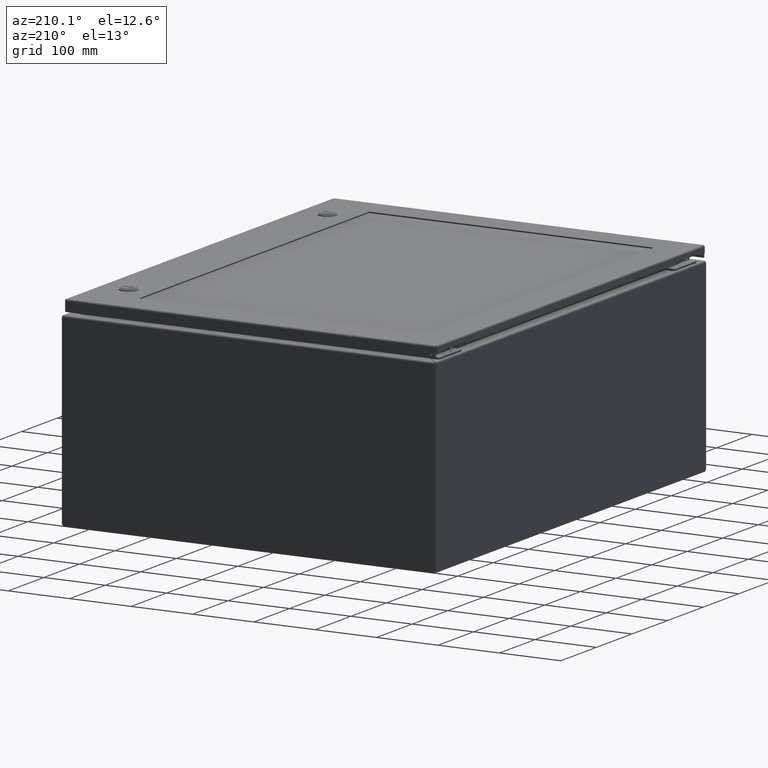
[diagram: clean part render]
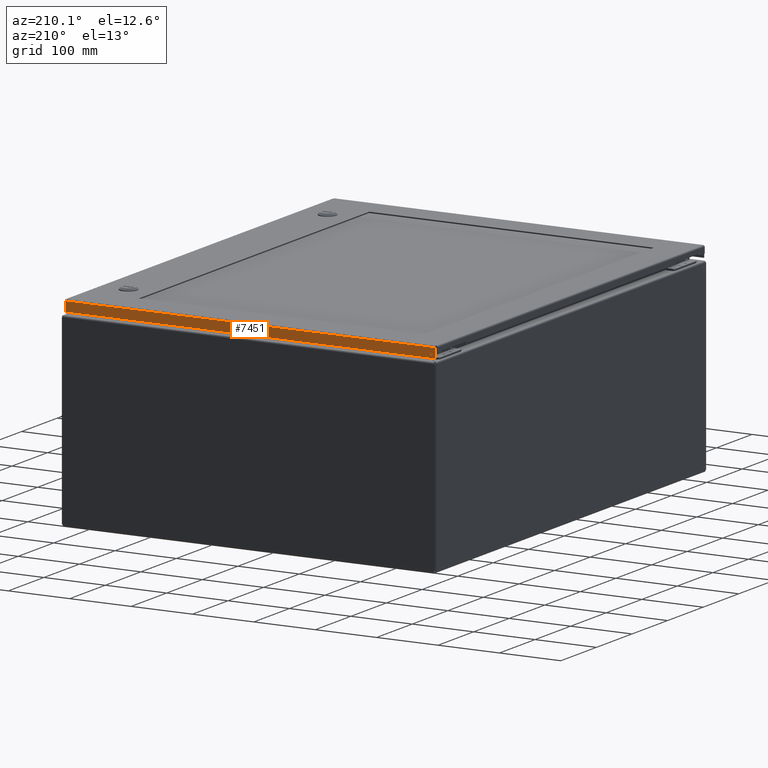
[diagram: same view with one face highlighted and labeled with its STEP entity id]
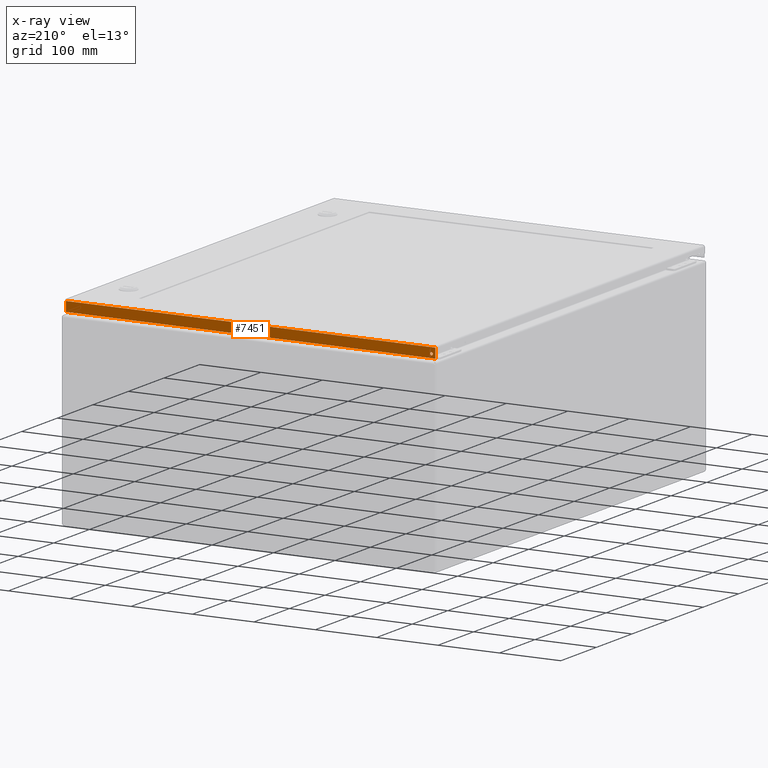
[diagram: x-ray of the same camera — body ghosted, the highlighted face saturated]
A machine part, auxiliary view. The second image highlights one B-rep face of the part: STEP entity #7451.
The next image is the same camera in x-ray: the body ghosted, the highlighted face saturated — about 0% of this face is hidden behind the body in this view.
In plain terms, the highlighted planar face has unit normal (0, -1, -0).
Its self-contained STEP definition (entity closure, byte-faithful):
#6441=CARTESIAN_POINT('',(23.633951456543965,29.749999999999989,0.480000000000008));
#6442=VERTEX_POINT('',#6441);
#6443=CARTESIAN_POINT('',(23.539951456543964,29.749999999999982,0.480000000000008));
#6444=DIRECTION('',(0.0,-1.0,0.0));
#6445=DIRECTION('',(-1.0,0.0,0.0));
#6446=AXIS2_PLACEMENT_3D('',#6443,#6444,#6445);
#6447=CIRCLE('',#6446,0.094000000000000);
#6448=EDGE_CURVE('',#6442,#6442,#6447,.T.);
#7206=CARTESIAN_POINT('',(23.789951456543967,29.750000000000007,0.105250000000001));
#7207=VERTEX_POINT('',#7206);
#7208=CARTESIAN_POINT('',(0.085048543456042,29.749999999999996,0.105249999999996));
#7209=VERTEX_POINT('',#7208);
#7210=CARTESIAN_POINT('',(23.789951456543967,29.750000000000007,0.105250000000001));
#7211=DIRECTION('',(-1.0,0.0,0.0));
#7212=VECTOR('',#7211,23.704902913087928);
#7213=LINE('',#7210,#7212);
#7214=EDGE_CURVE('',#7207,#7209,#7213,.T.);
#7293=CARTESIAN_POINT('',(0.085048543456030,29.749999999999961,0.729999999999997));
#7294=VERTEX_POINT('',#7293);
#7295=CARTESIAN_POINT('',(0.085048543456030,29.749999999999957,0.729999999999996));
#7296=DIRECTION('',(0.0,0.0,-1.0));
#7297=VECTOR('',#7296,0.624750000000000);
#7298=LINE('',#7295,#7297);
#7299=EDGE_CURVE('',#7294,#7209,#7298,.T.);
#7401=CARTESIAN_POINT('',(23.789951456543950,29.749999999999972,0.730000000000008));
#7402=VERTEX_POINT('',#7401);
#7403=CARTESIAN_POINT('',(23.789951456543950,29.750000000000007,0.105250000000007));
#7404=DIRECTION('',(0.0,0.0,1.0));
#7405=VECTOR('',#7404,0.624750000000000);
#7406=LINE('',#7403,#7405);
#7407=EDGE_CURVE('',#7207,#7402,#7406,.T.);
#7425=CARTESIAN_POINT('',(23.789951456543950,29.749999999999979,0.730000000000008));
#7426=DIRECTION('',(-1.0,0.0,0.0));
#7427=VECTOR('',#7426,23.704902913087921);
#7428=LINE('',#7425,#7427);
#7429=EDGE_CURVE('',#7402,#7294,#7428,.T.);
#7437=CARTESIAN_POINT('',(11.937499999999993,29.749999999999982,0.374747570757028));
#7438=DIRECTION('',(0.0,-1.0,0.0));
#7439=DIRECTION('',(1.0,0.0,0.0));
#7440=AXIS2_PLACEMENT_3D('',#7437,#7438,#7439);
#7441=PLANE('',#7440);
#7442=ORIENTED_EDGE('',*,*,#7214,.T.);
#7443=ORIENTED_EDGE('',*,*,#7299,.F.);
#7444=ORIENTED_EDGE('',*,*,#7429,.F.);
#7445=ORIENTED_EDGE('',*,*,#7407,.F.);
#7446=EDGE_LOOP('',(#7442,#7443,#7444,#7445));
#7447=FACE_OUTER_BOUND('',#7446,.T.);
#7448=ORIENTED_EDGE('',*,*,#6448,.T.);
#7449=EDGE_LOOP('',(#7448));
#7450=FACE_BOUND('',#7449,.T.);
#7451=ADVANCED_FACE('',(#7447,#7450),#7441,.F.);